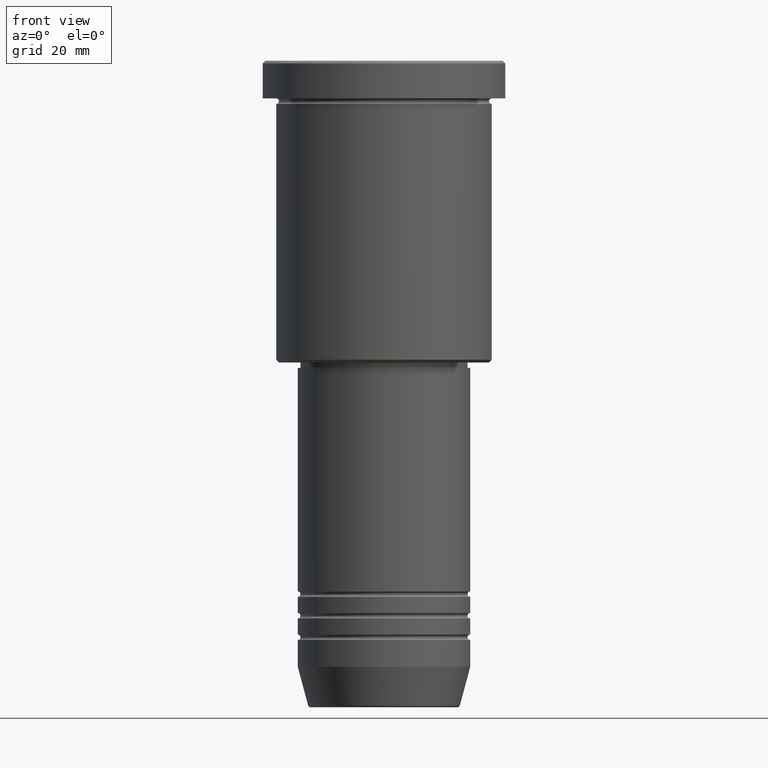
[diagram: clean part render]
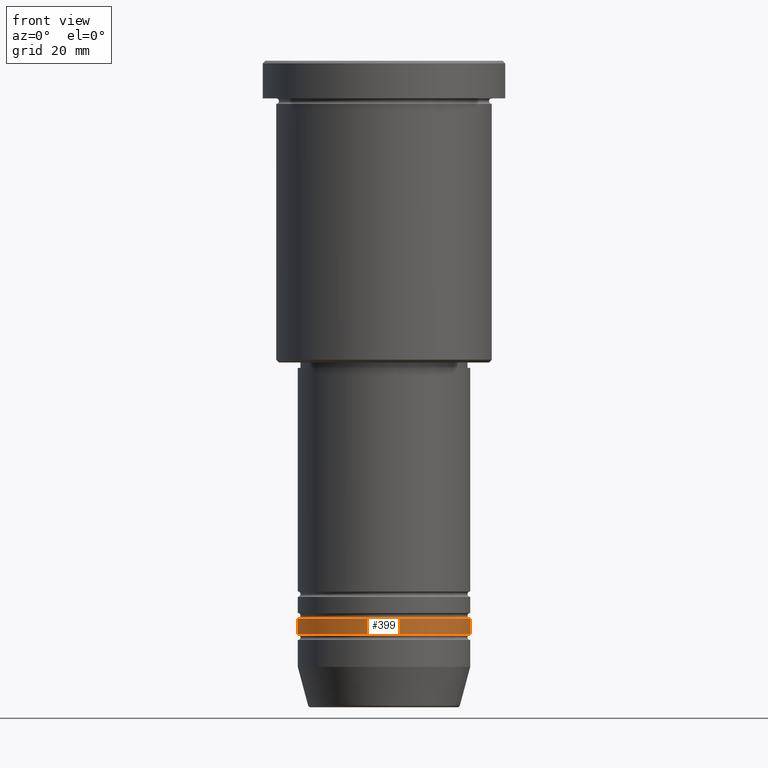
[diagram: same view with one face highlighted and labeled with its STEP entity id]
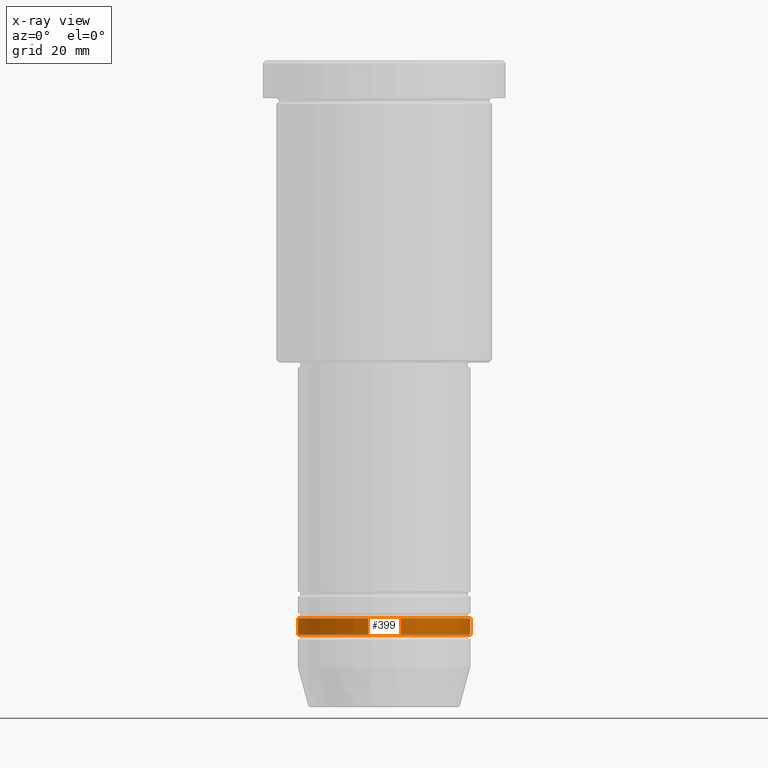
[diagram: x-ray of the same camera — body ghosted, the highlighted face saturated]
A machine part, front view. The second image highlights one B-rep face of the part: STEP entity #399.
The next image is the same camera in x-ray: the body ghosted, the highlighted face saturated — about 0% of this face is hidden behind the body in this view.
In plain terms, the highlighted cylindrical surface (partial cylindrical patch) has radius 16 mm, axis along (-0, -0, 1).
Its self-contained STEP definition (entity closure, byte-faithful):
#2 = EDGE_CURVE ( 'NONE', #220, #222, #883, .T. ) ;
#9 = FACE_OUTER_BOUND ( 'NONE', #1090, .T. ) ;
#97 = AXIS2_PLACEMENT_3D ( 'NONE', #181, #1171, #813 ) ;
#100 = DIRECTION ( 'NONE',  ( 1.000000000000000000, 0.000000000000000000, 0.000000000000000000 ) ) ;
#107 = CARTESIAN_POINT ( 'NONE',  ( -16.00000000000000000, 1.959434878635765131E-15, -106.4999999999999716 ) ) ;
#142 = DIRECTION ( 'NONE',  ( -0.000000000000000000, -0.000000000000000000, 1.000000000000000000 ) ) ;
#181 = CARTESIAN_POINT ( 'NONE',  ( 0.000000000000000000, 0.000000000000000000, -103.4999999999999858 ) ) ;
#220 = VERTEX_POINT ( 'NONE', #107 ) ;
#222 = VERTEX_POINT ( 'NONE', #484 ) ;
#287 = VECTOR ( 'NONE', #529, 1000.000000000000000 ) ;
#315 = DIRECTION ( 'NONE',  ( -0.000000000000000000, -0.000000000000000000, 1.000000000000000000 ) ) ;
#332 = VECTOR ( 'NONE', #142, 1000.000000000000000 ) ;
#374 = EDGE_CURVE ( 'NONE', #220, #439, #426, .T. ) ;
#399 = ADVANCED_FACE ( 'NONE', ( #9 ), #944, .T. ) ;
#426 = CIRCLE ( 'NONE', #808, 16.00000000000000000 ) ;
#439 = VERTEX_POINT ( 'NONE', #763 ) ;
#484 = CARTESIAN_POINT ( 'NONE',  ( -16.00000000000000000, 1.959434878635765131E-15, -103.4999999999999858 ) ) ;
#529 = DIRECTION ( 'NONE',  ( -0.000000000000000000, -0.000000000000000000, 1.000000000000000000 ) ) ;
#563 = CARTESIAN_POINT ( 'NONE',  ( 16.00000000000000000, 0.000000000000000000, -103.4999999999999858 ) ) ;
#594 = EDGE_CURVE ( 'NONE', #439, #778, #966, .T. ) ;
#606 = ORIENTED_EDGE ( 'NONE', *, *, #374, .T. ) ;
#644 = ORIENTED_EDGE ( 'NONE', *, *, #594, .T. ) ;
#651 = CARTESIAN_POINT ( 'NONE',  ( 0.000000000000000000, 0.000000000000000000, 0.000000000000000000 ) ) ;
#674 = DIRECTION ( 'NONE',  ( 1.000000000000000000, 0.000000000000000000, 0.000000000000000000 ) ) ;
#756 = ORIENTED_EDGE ( 'NONE', *, *, #1154, .F. ) ;
#763 = CARTESIAN_POINT ( 'NONE',  ( 16.00000000000000000, 0.000000000000000000, -106.4999999999999716 ) ) ;
#768 = ORIENTED_EDGE ( 'NONE', *, *, #2, .F. ) ;
#778 = VERTEX_POINT ( 'NONE', #563 ) ;
#808 = AXIS2_PLACEMENT_3D ( 'NONE', #838, #315, #100 ) ;
#813 = DIRECTION ( 'NONE',  ( 1.000000000000000000, 0.000000000000000000, 0.000000000000000000 ) ) ;
#838 = CARTESIAN_POINT ( 'NONE',  ( 0.000000000000000000, 0.000000000000000000, -106.4999999999999716 ) ) ;
#883 = LINE ( 'NONE', #1168, #287 ) ;
#926 = DIRECTION ( 'NONE',  ( -0.000000000000000000, -0.000000000000000000, 1.000000000000000000 ) ) ;
#944 = CYLINDRICAL_SURFACE ( 'NONE', #1126, 16.00000000000000000 ) ;
#966 = LINE ( 'NONE', #1067, #332 ) ;
#1012 = CIRCLE ( 'NONE', #97, 16.00000000000000000 ) ;
#1067 = CARTESIAN_POINT ( 'NONE',  ( 16.00000000000000000, 0.000000000000000000, 0.000000000000000000 ) ) ;
#1090 = EDGE_LOOP ( 'NONE', ( #768, #606, #644, #756 ) ) ;
#1126 = AXIS2_PLACEMENT_3D ( 'NONE', #651, #926, #674 ) ;
#1154 = EDGE_CURVE ( 'NONE', #222, #778, #1012, .T. ) ;
#1168 = CARTESIAN_POINT ( 'NONE',  ( -16.00000000000000000, 1.959434878635765131E-15, 0.000000000000000000 ) ) ;
#1171 = DIRECTION ( 'NONE',  ( -0.000000000000000000, -0.000000000000000000, 1.000000000000000000 ) ) ;